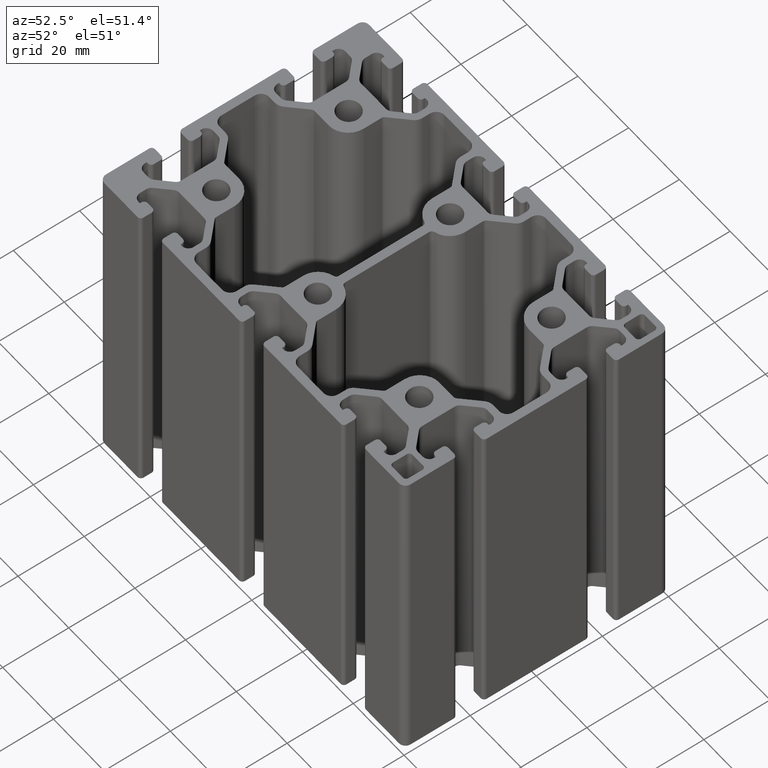
[diagram: clean part render]
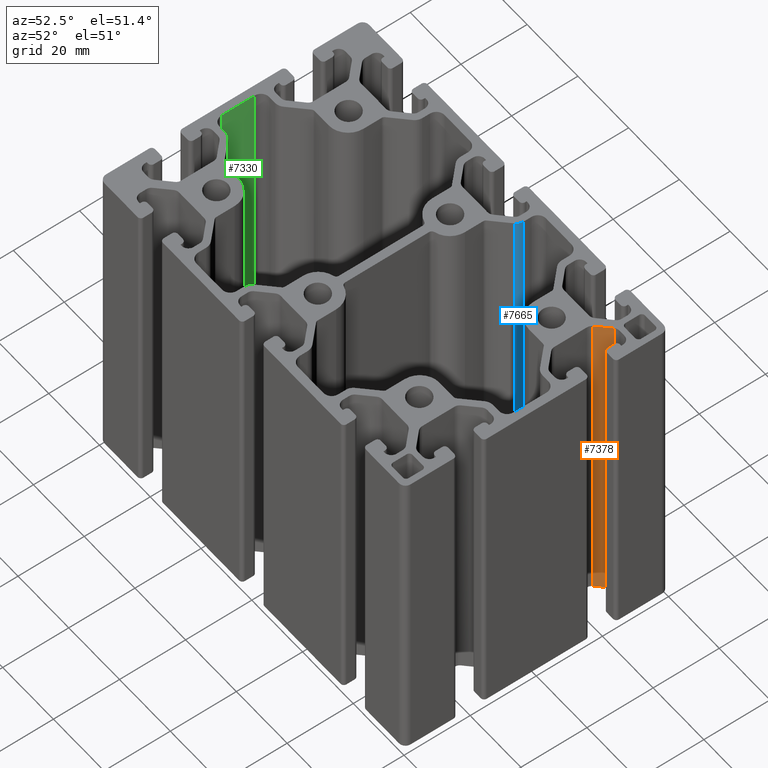
[diagram: same view with three faces highlighted in distinct colors, each labeled with its STEP entity id]
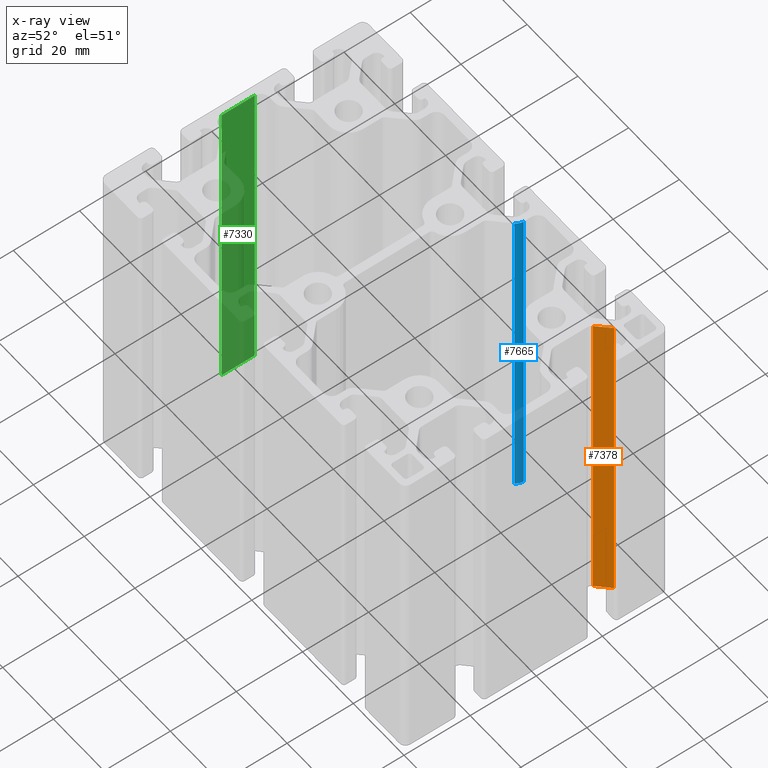
[diagram: x-ray of the same camera — body ghosted, the three highlighted faces saturated]
A machine part, auxiliary view with three faces highlighted in distinct colors.
The next image is the same camera in x-ray (body ghosted, the three faces saturated) — at least one of them is partly hidden behind the body in this view.
Their STEP definitions:

[orange] entity #7378 — the highlighted planar face has unit normal (-0.7071, 0.7071, 0).
#74=PLANE('',#7832);
#306=FACE_OUTER_BOUND('',#690,.T.);
#690=EDGE_LOOP('',(#5113,#5114,#5115,#5116));
#1167=LINE('',#11142,#1935);
#1168=LINE('',#11146,#1936);
#1169=LINE('',#11148,#1937);
#1170=LINE('',#11149,#1938);
#1935=VECTOR('',#8857,100.);
#1936=VECTOR('',#8862,5.08578643762689);
#1937=VECTOR('',#8863,100.);
#1938=VECTOR('',#8864,5.08578643762689);
#3077=VERTEX_POINT('',#11139);
#3078=VERTEX_POINT('',#11141);
#3079=VERTEX_POINT('',#11145);
#3080=VERTEX_POINT('',#11147);
#3906=EDGE_CURVE('',#3078,#3077,#1167,.T.);
#3908=EDGE_CURVE('',#3079,#3077,#1168,.T.);
#3909=EDGE_CURVE('',#3080,#3079,#1169,.T.);
#3910=EDGE_CURVE('',#3078,#3080,#1170,.T.);
#5113=ORIENTED_EDGE('',*,*,#3908,.F.);
#5114=ORIENTED_EDGE('',*,*,#3909,.F.);
#5115=ORIENTED_EDGE('',*,*,#3910,.F.);
#5116=ORIENTED_EDGE('',*,*,#3906,.T.);
#7378=ADVANCED_FACE('',(#306),#74,.F.);
#7832=AXIS2_PLACEMENT_3D('',#11144,#8860,#8861);
#8857=DIRECTION('',(0.,0.,1.));
#8860=DIRECTION('center_axis',(-0.707106781186545,0.70710678118655,0.));
#8861=DIRECTION('ref_axis',(0.,0.,1.));
#8862=DIRECTION('',(0.70710678118655,0.707106781186545,0.));
#8863=DIRECTION('',(0.,0.,1.));
#8864=DIRECTION('',(-0.70710678118655,-0.707106781186545,0.));
#11139=CARTESIAN_POINT('',(51.6819805153394,29.9142135623731,100.));
#11141=CARTESIAN_POINT('',(51.6819805153394,29.9142135623731,0.));
#11142=CARTESIAN_POINT('',(51.6819805153394,29.9142135623731,0.));
#11144=CARTESIAN_POINT('Origin',(48.0857864376269,26.3180194846605,0.));
#11145=CARTESIAN_POINT('',(48.0857864376269,26.3180194846605,100.));
#11146=CARTESIAN_POINT('',(29.4848349570549,7.71706800408872,100.));
#11147=CARTESIAN_POINT('',(48.0857864376269,26.3180194846605,0.));
#11148=CARTESIAN_POINT('',(48.0857864376269,26.3180194846605,0.));
#11149=CARTESIAN_POINT('',(29.4848349570549,7.71706800408872,0.));

[blue] entity #7665 — the highlighted cylindrical surface (edge-blend (fillet) strip) has radius 3 mm, axis along (0, 0, 1).
#593=FACE_OUTER_BOUND('',#983,.T.);
#983=EDGE_LOOP('',(#6249,#6250,#6251,#6252));
#1746=LINE('',#12885,#2514);
#1748=LINE('',#12891,#2516);
#2514=VECTOR('',#10580,100.);
#2516=VECTOR('',#10586,100.);
#2921=CIRCLE('',#8404,3.00000000000002);
#2922=CIRCLE('',#8405,3.00000000000002);
#3669=VERTEX_POINT('',#12882);
#3670=VERTEX_POINT('',#12884);
#3671=VERTEX_POINT('',#12888);
#3672=VERTEX_POINT('',#12890);
#4770=EDGE_CURVE('',#3670,#3669,#1746,.T.);
#4772=EDGE_CURVE('',#3671,#3669,#2921,.T.);
#4773=EDGE_CURVE('',#3672,#3671,#1748,.T.);
#4774=EDGE_CURVE('',#3670,#3672,#2922,.T.);
#6249=ORIENTED_EDGE('',*,*,#4772,.F.);
#6250=ORIENTED_EDGE('',*,*,#4773,.F.);
#6251=ORIENTED_EDGE('',*,*,#4774,.F.);
#6252=ORIENTED_EDGE('',*,*,#4770,.T.);
#7301=CYLINDRICAL_SURFACE('',#8403,3.00000000000002);
#7665=ADVANCED_FACE('',(#593),#7301,.T.);
#8403=AXIS2_PLACEMENT_3D('',#12887,#10582,#10583);
#8404=AXIS2_PLACEMENT_3D('',#12889,#10584,#10585);
#8405=AXIS2_PLACEMENT_3D('',#12892,#10587,#10588);
#10580=DIRECTION('',(0.,0.,1.));
#10582=DIRECTION('center_axis',(0.,0.,1.));
#10583=DIRECTION('ref_axis',(-0.707106781186546,0.707106781186549,0.));
#10584=DIRECTION('center_axis',(0.,0.,1.));
#10585=DIRECTION('ref_axis',(-0.707106781186546,0.707106781186549,0.));
#10586=DIRECTION('',(0.,0.,1.));
#10587=DIRECTION('center_axis',(0.,0.,-1.));
#10588=DIRECTION('ref_axis',(-0.707106781186546,0.707106781186549,0.));
#12882=CARTESIAN_POINT('',(12.5,32.6819805153394,100.));
#12884=CARTESIAN_POINT('',(12.5,32.6819805153394,0.));
#12885=CARTESIAN_POINT('',(12.5,32.6819805153394,0.));
#12887=CARTESIAN_POINT('Origin',(9.49999999999999,32.6819805153394,0.));
#12888=CARTESIAN_POINT('',(11.6213203435596,30.5606601717798,100.));
#12889=CARTESIAN_POINT('Origin',(9.49999999999999,32.6819805153394,100.));
#12890=CARTESIAN_POINT('',(11.6213203435596,30.5606601717798,0.));
#12891=CARTESIAN_POINT('',(11.6213203435596,30.5606601717798,0.));
#12892=CARTESIAN_POINT('Origin',(9.49999999999999,32.6819805153394,0.));

[green] entity #7330 — the highlighted planar face has unit normal (-1, 0, 0).
#50=PLANE('',#7736);
#258=FACE_OUTER_BOUND('',#642,.T.);
#642=EDGE_LOOP('',(#4921,#4922,#4923,#4924));
#1070=LINE('',#10852,#1838);
#1071=LINE('',#10855,#1839);
#1072=LINE('',#10857,#1840);
#1073=LINE('',#10858,#1841);
#1838=VECTOR('',#8570,100.);
#1839=VECTOR('',#8573,10.);
#1840=VECTOR('',#8574,10.);
#1841=VECTOR('',#8575,100.);
#2979=VERTEX_POINT('',#10848);
#2980=VERTEX_POINT('',#10850);
#2981=VERTEX_POINT('',#10854);
#2982=VERTEX_POINT('',#10856);
#3762=EDGE_CURVE('',#2980,#2979,#1070,.T.);
#3763=EDGE_CURVE('',#2979,#2981,#1071,.T.);
#3764=EDGE_CURVE('',#2982,#2980,#1072,.T.);
#3765=EDGE_CURVE('',#2982,#2981,#1073,.T.);
#4921=ORIENTED_EDGE('',*,*,#3763,.F.);
#4922=ORIENTED_EDGE('',*,*,#3762,.F.);
#4923=ORIENTED_EDGE('',*,*,#3764,.F.);
#4924=ORIENTED_EDGE('',*,*,#3765,.T.);
#7330=ADVANCED_FACE('',(#258),#50,.F.);
#7736=AXIS2_PLACEMENT_3D('',#10853,#8571,#8572);
#8570=DIRECTION('',(0.,0.,1.));
#8571=DIRECTION('center_axis',(-1.,0.,0.));
#8572=DIRECTION('ref_axis',(0.,0.,1.));
#8573=DIRECTION('',(0.,1.,0.));
#8574=DIRECTION('',(0.,-1.,0.));
#8575=DIRECTION('',(0.,0.,1.));
#10848=CARTESIAN_POINT('',(-57.5,-5.,100.));
#10850=CARTESIAN_POINT('',(-57.5,-5.,0.));
#10852=CARTESIAN_POINT('',(-57.5,-5.,0.));
#10853=CARTESIAN_POINT('Origin',(-57.5,-5.,0.));
#10854=CARTESIAN_POINT('',(-57.5,5.,100.));
#10855=CARTESIAN_POINT('',(-57.5,-2.5,100.));
#10856=CARTESIAN_POINT('',(-57.5,5.,0.));
#10857=CARTESIAN_POINT('',(-57.5,-2.5,0.));
#10858=CARTESIAN_POINT('',(-57.5,5.,0.));